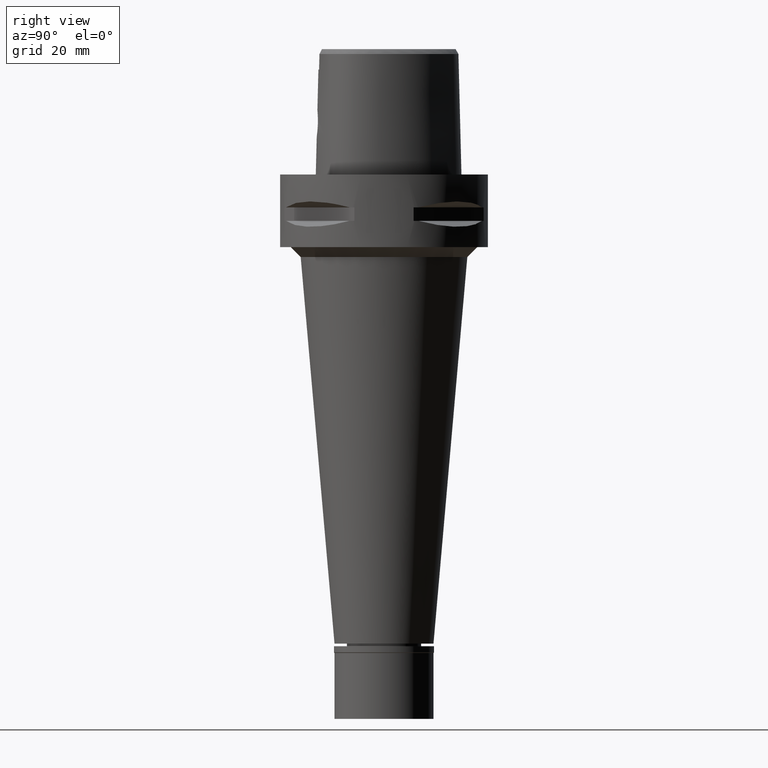
[diagram: clean part render]
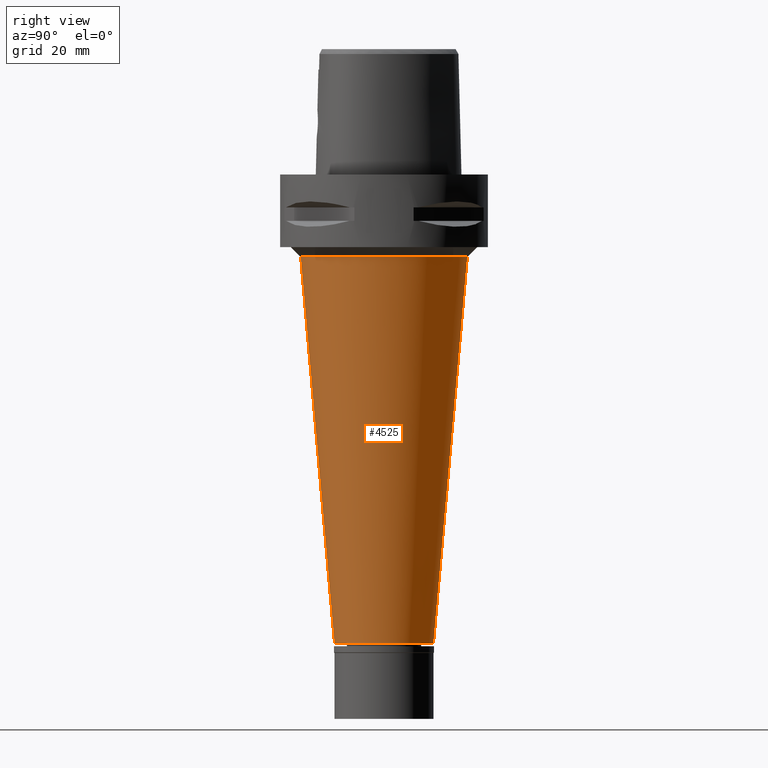
[diagram: same view with one face highlighted and labeled with its STEP entity id]
A machine part, right view. The second image highlights one B-rep face of the part: STEP entity #4525.
In plain terms, the highlighted conical surface has half-angle 5 deg.
Its self-contained STEP definition (entity closure, byte-faithful):
#23 = CARTESIAN_POINT ( 'NONE',  ( 0.0000000000000000000, 25.25367136523999889, -25.00000000000000000 ) ) ;
#138 = VERTEX_POINT ( 'NONE', #4093 ) ;
#307 = VECTOR ( 'NONE', #3526, 1000.000000000000227 ) ;
#351 = ORIENTED_EDGE ( 'NONE', *, *, #549, .T. ) ;
#492 = CIRCLE ( 'NONE', #2685, 25.25367136523999889 ) ;
#549 = EDGE_CURVE ( 'NONE', #1523, #758, #2286, .T. ) ;
#646 = CIRCLE ( 'NONE', #4651, 15.00000000000000000 ) ;
#727 = CARTESIAN_POINT ( 'NONE',  ( 0.0000000000000000000, -1.023804724086999888E-14, -142.1999999999999886 ) ) ;
#758 = VERTEX_POINT ( 'NONE', #3136 ) ;
#784 = DIRECTION ( 'NONE',  ( 0.0000000000000000000, -0.08715574274766398066, -0.9961946980917449901 ) ) ;
#832 = CARTESIAN_POINT ( 'NONE',  ( 0.0000000000000000000, -25.25367136523999889, -25.00000000000000000 ) ) ;
#1151 = AXIS2_PLACEMENT_3D ( 'NONE', #3368, #1417, #2966 ) ;
#1417 = DIRECTION ( 'NONE',  ( 0.0000000000000000000, 0.0000000000000000000, 1.000000000000000000 ) ) ;
#1523 = VERTEX_POINT ( 'NONE', #3384 ) ;
#1526 = ORIENTED_EDGE ( 'NONE', *, *, #4154, .F. ) ;
#1565 = DIRECTION ( 'NONE',  ( 0.0000000000000000000, -1.000000000000000000, 0.0000000000000000000 ) ) ;
#1809 = EDGE_CURVE ( 'NONE', #758, #2775, #646, .T. ) ;
#1903 = DIRECTION ( 'NONE',  ( 0.0000000000000000000, -1.000000000000000000, 0.0000000000000000000 ) ) ;
#1927 = DIRECTION ( 'NONE',  ( 0.0000000000000000000, 0.0000000000000000000, 1.000000000000000000 ) ) ;
#1965 = CONICAL_SURFACE ( 'NONE', #1151, 20.12683568262000122, 0.08726646259969973729 ) ;
#2169 = ORIENTED_EDGE ( 'NONE', *, *, #1809, .T. ) ;
#2286 = LINE ( 'NONE', #832, #307 ) ;
#2547 = EDGE_CURVE ( 'NONE', #138, #2775, #5063, .T. ) ;
#2685 = AXIS2_PLACEMENT_3D ( 'NONE', #4715, #4768, #1565 ) ;
#2775 = VERTEX_POINT ( 'NONE', #4771 ) ;
#2913 = FACE_OUTER_BOUND ( 'NONE', #2975, .T. ) ;
#2966 = DIRECTION ( 'NONE',  ( 0.0000000000000000000, 1.000000000000000000, 0.0000000000000000000 ) ) ;
#2975 = EDGE_LOOP ( 'NONE', ( #1526, #351, #2169, #3348 ) ) ;
#3012 = VECTOR ( 'NONE', #784, 1000.000000000000227 ) ;
#3136 = CARTESIAN_POINT ( 'NONE',  ( 0.0000000000000000000, -15.00000000000000000, -142.1999999999999886 ) ) ;
#3348 = ORIENTED_EDGE ( 'NONE', *, *, #2547, .F. ) ;
#3368 = CARTESIAN_POINT ( 'NONE',  ( 0.0000000000000000000, -1.023804724086999888E-14, -83.59999999999999432 ) ) ;
#3384 = CARTESIAN_POINT ( 'NONE',  ( 0.0000000000000000000, -25.25367136523999889, -25.00000000000000000 ) ) ;
#3526 = DIRECTION ( 'NONE',  ( 0.0000000000000000000, 0.08715574274766398066, -0.9961946980917449901 ) ) ;
#4093 = CARTESIAN_POINT ( 'NONE',  ( 0.0000000000000000000, 25.25367136523999889, -25.00000000000000000 ) ) ;
#4154 = EDGE_CURVE ( 'NONE', #1523, #138, #492, .T. ) ;
#4525 = ADVANCED_FACE ( 'NONE', ( #2913 ), #1965, .T. ) ;
#4651 = AXIS2_PLACEMENT_3D ( 'NONE', #727, #1927, #1903 ) ;
#4715 = CARTESIAN_POINT ( 'NONE',  ( 0.0000000000000000000, -1.023804724086999888E-14, -25.00000000000000000 ) ) ;
#4768 = DIRECTION ( 'NONE',  ( 0.0000000000000000000, 0.0000000000000000000, 1.000000000000000000 ) ) ;
#4771 = CARTESIAN_POINT ( 'NONE',  ( 0.0000000000000000000, 15.00000000000000000, -142.1999999999999886 ) ) ;
#5063 = LINE ( 'NONE', #23, #3012 ) ;